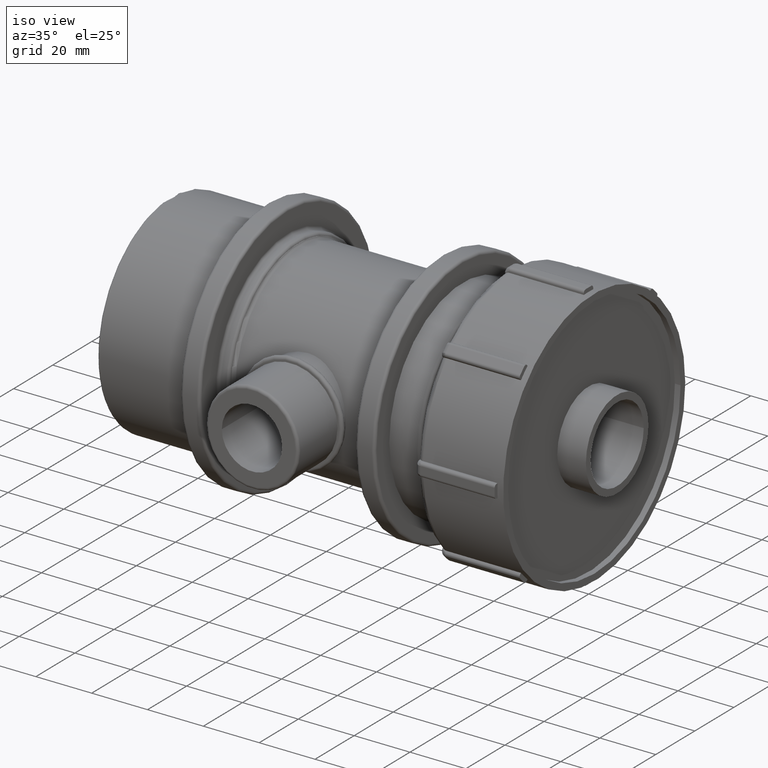
[diagram: clean part render]
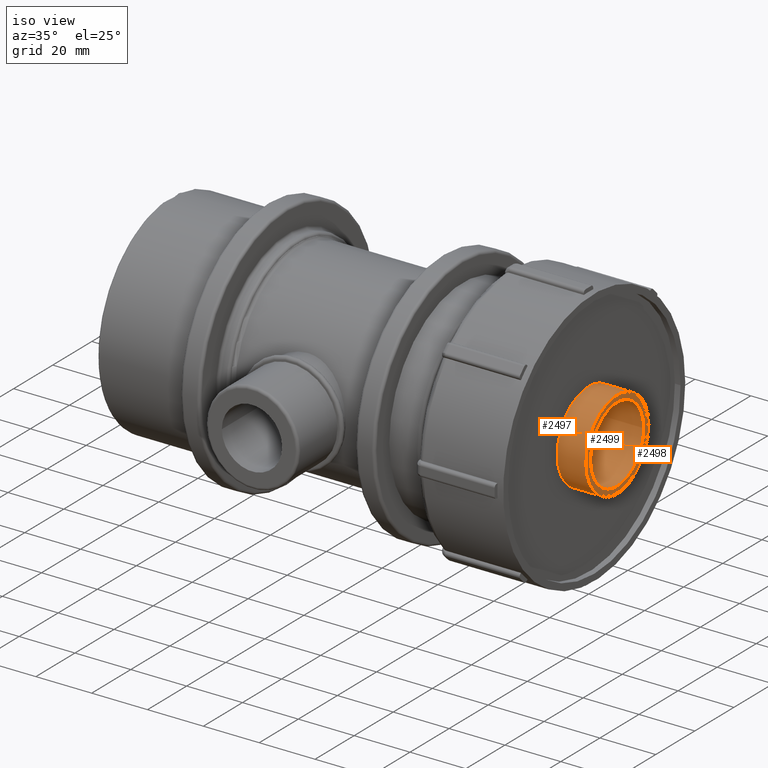
[diagram: same view with one multi-face feature highlighted, each face labeled with its STEP entity id]
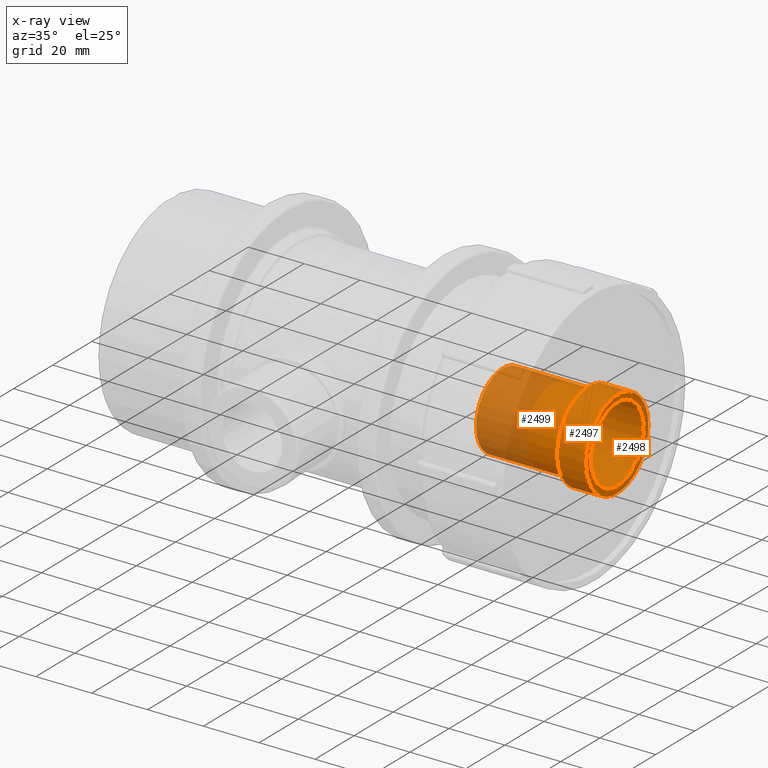
[diagram: x-ray of the same camera — body ghosted, the whole feature saturated]
A machine part, iso view. The highlighted faces form ONE feature: a stepped (counterbored) hole: 2 coaxial cylindrical walls of radii 13.6 -> 16 mm joined by 1 annular planar shoulder face(s). The faces share edges in the B-rep.
The next image is the same camera in x-ray: the body ghosted and the whole hole feature saturated, so the bore chain is visible through the body.
Their STEP definitions:
[1] entity #2497 (Cylinder):
#477=CIRCLE('',#2806,16.);
#478=CIRCLE('',#2808,16.);
#556=FACE_BOUND('',#931,.T.);
#725=FACE_OUTER_BOUND('',#930,.T.);
#930=EDGE_LOOP('',(#2246));
#931=EDGE_LOOP('',(#2247));
#1235=VERTEX_POINT('',#4917);
#1236=VERTEX_POINT('',#4920);
#1579=EDGE_CURVE('',#1235,#1235,#477,.T.);
#1580=EDGE_CURVE('',#1236,#1236,#478,.T.);
#2246=ORIENTED_EDGE('',*,*,#1580,.F.);
#2247=ORIENTED_EDGE('',*,*,#1579,.T.);
#2339=CYLINDRICAL_SURFACE('',#2807,16.);
#2497=ADVANCED_FACE('',(#725,#556),#2339,.T.);
#2806=AXIS2_PLACEMENT_3D('',#4918,#3522,#3523);
#2807=AXIS2_PLACEMENT_3D('',#4919,#3524,#3525);
#2808=AXIS2_PLACEMENT_3D('',#4921,#3526,#3527);
#3522=DIRECTION('center_axis',(1.,0.,0.));
#3523=DIRECTION('ref_axis',(0.,0.,-1.));
#3524=DIRECTION('center_axis',(1.,0.,0.));
#3525=DIRECTION('ref_axis',(0.,1.,0.));
#3526=DIRECTION('center_axis',(1.,0.,0.));
#3527=DIRECTION('ref_axis',(0.,0.,-1.));
#4917=CARTESIAN_POINT('',(79.925,16.,0.));
#4918=CARTESIAN_POINT('Origin',(79.925,0.,0.));
#4919=CARTESIAN_POINT('Origin',(85.05,0.,0.));
#4920=CARTESIAN_POINT('',(90.175,16.,0.));
#4921=CARTESIAN_POINT('Origin',(90.175,0.,0.));
[2] entity #2499 (Cylinder):
#479=CIRCLE('',#2810,13.6);
#480=CIRCLE('',#2812,13.6);
#558=FACE_BOUND('',#935,.T.);
#727=FACE_OUTER_BOUND('',#934,.T.);
#934=EDGE_LOOP('',(#2250));
#935=EDGE_LOOP('',(#2251));
#1237=VERTEX_POINT('',#4923);
#1238=VERTEX_POINT('',#4926);
#1581=EDGE_CURVE('',#1237,#1237,#479,.T.);
#1582=EDGE_CURVE('',#1238,#1238,#480,.T.);
#2250=ORIENTED_EDGE('',*,*,#1582,.F.);
#2251=ORIENTED_EDGE('',*,*,#1581,.T.);
#2340=CYLINDRICAL_SURFACE('',#2811,13.6);
#2499=ADVANCED_FACE('',(#727,#558),#2340,.F.);
#2810=AXIS2_PLACEMENT_3D('',#4924,#3530,#3531);
#2811=AXIS2_PLACEMENT_3D('',#4925,#3532,#3533);
#2812=AXIS2_PLACEMENT_3D('',#4927,#3534,#3535);
#3530=DIRECTION('center_axis',(1.,0.,0.));
#3531=DIRECTION('ref_axis',(0.,0.,-1.));
#3532=DIRECTION('center_axis',(1.,0.,0.));
#3533=DIRECTION('ref_axis',(0.,1.,0.));
#3534=DIRECTION('center_axis',(1.,0.,0.));
#3535=DIRECTION('ref_axis',(0.,0.,-1.));
#4923=CARTESIAN_POINT('',(90.175,13.6,0.));
#4924=CARTESIAN_POINT('Origin',(90.175,0.,0.));
#4925=CARTESIAN_POINT('Origin',(69.675,0.,0.));
#4926=CARTESIAN_POINT('',(49.175,13.6,0.));
#4927=CARTESIAN_POINT('Origin',(49.175,0.,0.));
[3] entity #2498 (Plane):
#299=PLANE('',#2809);
#478=CIRCLE('',#2808,16.);
#479=CIRCLE('',#2810,13.6);
#557=FACE_BOUND('',#933,.T.);
#726=FACE_OUTER_BOUND('',#932,.T.);
#932=EDGE_LOOP('',(#2248));
#933=EDGE_LOOP('',(#2249));
#1236=VERTEX_POINT('',#4920);
#1237=VERTEX_POINT('',#4923);
#1580=EDGE_CURVE('',#1236,#1236,#478,.T.);
#1581=EDGE_CURVE('',#1237,#1237,#479,.T.);
#2248=ORIENTED_EDGE('',*,*,#1580,.T.);
#2249=ORIENTED_EDGE('',*,*,#1581,.F.);
#2498=ADVANCED_FACE('',(#726,#557),#299,.T.);
#2808=AXIS2_PLACEMENT_3D('',#4921,#3526,#3527);
#2809=AXIS2_PLACEMENT_3D('',#4922,#3528,#3529);
#2810=AXIS2_PLACEMENT_3D('',#4924,#3530,#3531);
#3526=DIRECTION('center_axis',(1.,0.,0.));
#3527=DIRECTION('ref_axis',(0.,0.,-1.));
#3528=DIRECTION('center_axis',(1.,0.,0.));
#3529=DIRECTION('ref_axis',(0.,0.,-1.));
#3530=DIRECTION('center_axis',(1.,0.,0.));
#3531=DIRECTION('ref_axis',(0.,0.,-1.));
#4920=CARTESIAN_POINT('',(90.175,16.,0.));
#4921=CARTESIAN_POINT('Origin',(90.175,0.,0.));
#4922=CARTESIAN_POINT('Origin',(90.175,13.6,0.));
#4923=CARTESIAN_POINT('',(90.175,13.6,0.));
#4924=CARTESIAN_POINT('Origin',(90.175,0.,0.));